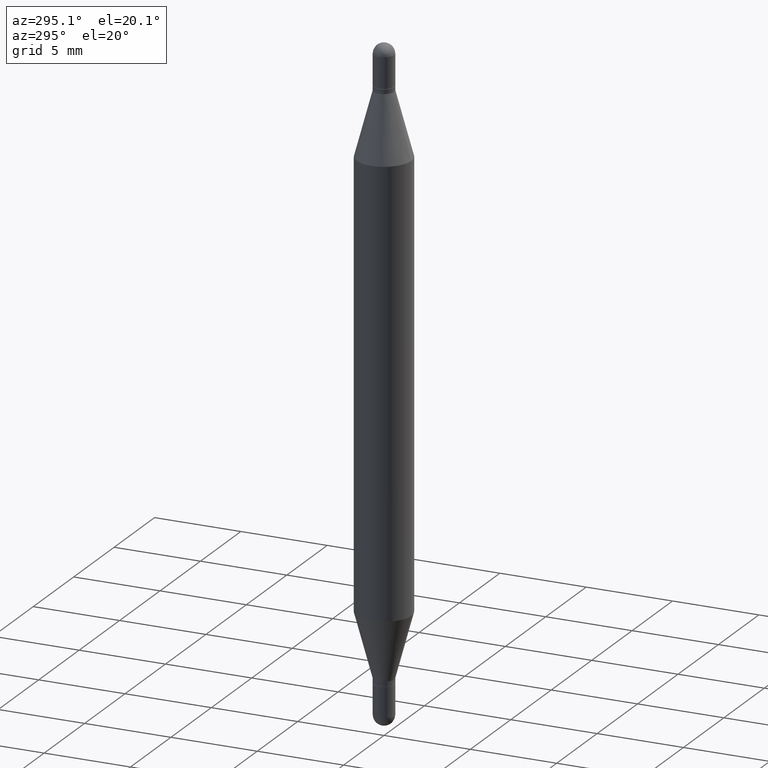
[diagram: clean part render]
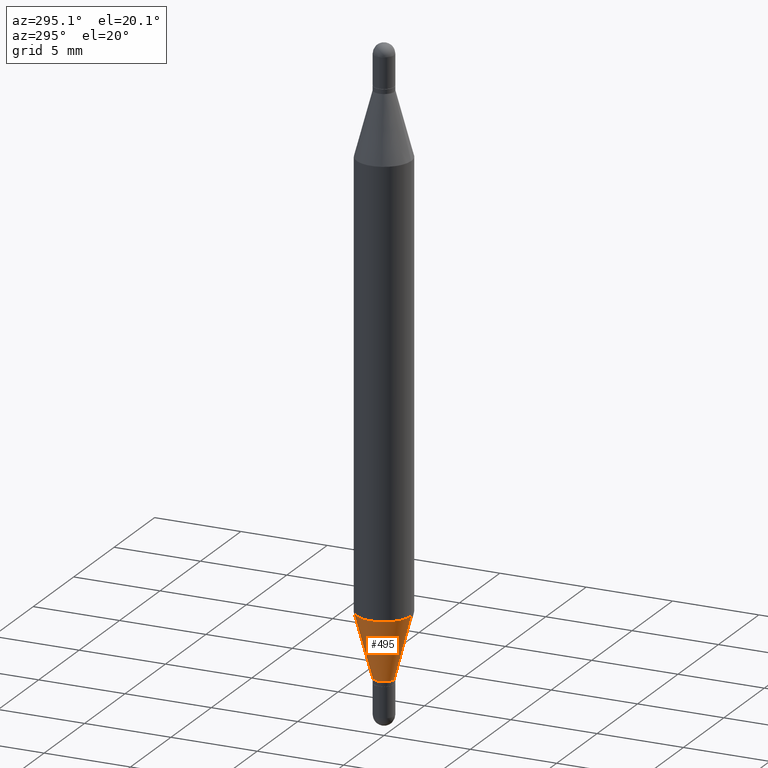
[diagram: same view with one face highlighted and labeled with its STEP entity id]
A machine part, auxiliary view. The second image highlights one B-rep face of the part: STEP entity #495.
In plain terms, the highlighted conical surface has half-angle 15 deg.
Its self-contained STEP definition (entity closure, byte-faithful):
#66 = DIRECTION ( 'NONE',  ( -2.445236134647148401E-29, 3.491814537728386085E-15, 1.000000000000000000 ) ) ;
#93 = VERTEX_POINT ( 'NONE', #431 ) ;
#105 = AXIS2_PLACEMENT_3D ( 'NONE', #230, #553, #468 ) ;
#153 = CARTESIAN_POINT ( 'NONE',  ( -1.637504747917082906E-16, -0.02345000000000479687, -1.396000000000000130 ) ) ;
#160 = DIRECTION ( 'NONE',  ( -6.982962677686266711E-15, -1.000000000000000000, 0.000000000000000000 ) ) ;
#207 = ORIENTED_EDGE ( 'NONE', *, *, #421, .T. ) ;
#215 = CIRCLE ( 'NONE', #357, 0.06250000000000000000 ) ;
#230 = CARTESIAN_POINT ( 'NONE',  ( 3.413549643967419566E-29, -4.874573094668826805E-15, -1.396000000000000130 ) ) ;
#276 = EDGE_CURVE ( 'NONE', #692, #879, #995, .T. ) ;
#351 = CARTESIAN_POINT ( 'NONE',  ( -1.637504747917082906E-16, -0.02345000000000479687, -1.396000000000000130 ) ) ;
#357 = AXIS2_PLACEMENT_3D ( 'NONE', #562, #485, #918 ) ;
#368 = CARTESIAN_POINT ( 'NONE',  ( 1.666222715357772816E-16, 0.02344999999999504772, -1.396000000000000130 ) ) ;
#372 = VECTOR ( 'NONE', #724, 39.37007874015748143 ) ;
#394 = CARTESIAN_POINT ( 'NONE',  ( 1.666222715357770350E-16, 0.02344999999999504772, -1.396000000000000130 ) ) ;
#403 = ORIENTED_EDGE ( 'NONE', *, *, #823, .T. ) ;
#415 = EDGE_CURVE ( 'NONE', #879, #93, #215, .T. ) ;
#421 = EDGE_CURVE ( 'NONE', #1046, #93, #1082, .T. ) ;
#431 = CARTESIAN_POINT ( 'NONE',  ( -4.364351673553610517E-16, -0.06250000000000435763, -1.250263415964435243 ) ) ;
#438 = CIRCLE ( 'NONE', #1014, 0.02344999999999992230 ) ;
#442 = VECTOR ( 'NONE', #638, 39.37007874015748143 ) ;
#468 = DIRECTION ( 'NONE',  ( -6.982962677686266711E-15, -1.000000000000000000, 0.000000000000000000 ) ) ;
#485 = DIRECTION ( 'NONE',  ( -2.445236134647148401E-29, 3.491814537728386085E-15, 1.000000000000000000 ) ) ;
#495 = ADVANCED_FACE ( 'NONE', ( #832 ), #718, .T. ) ;
#553 = DIRECTION ( 'NONE',  ( -2.445236134647148401E-29, 3.491814537728386085E-15, 1.000000000000000000 ) ) ;
#562 = CARTESIAN_POINT ( 'NONE',  ( 3.057189282543616555E-29, -4.365687971854568323E-15, -1.250263415964435687 ) ) ;
#638 = DIRECTION ( 'NONE',  ( -1.807323732225329745E-15, -0.2588190451025181305, 0.9659258262890689783 ) ) ;
#692 = VERTEX_POINT ( 'NONE', #368 ) ;
#718 = CONICAL_SURFACE ( 'NONE', #105, 0.02344999999999992230, 0.2617993877991502405 ) ;
#724 = DIRECTION ( 'NONE',  ( 1.839019923739599921E-15, 0.2588190451025249028, 0.9659258262890670910 ) ) ;
#823 = EDGE_CURVE ( 'NONE', #692, #1046, #438, .T. ) ;
#832 = FACE_OUTER_BOUND ( 'NONE', #1002, .T. ) ;
#844 = CARTESIAN_POINT ( 'NONE',  ( 3.413549643967419566E-29, -4.874573094668826805E-15, -1.396000000000000130 ) ) ;
#879 = VERTEX_POINT ( 'NONE', #1083 ) ;
#918 = DIRECTION ( 'NONE',  ( -6.982962677686265922E-15, -1.000000000000000000, 4.370956789862821150E-15 ) ) ;
#993 = ORIENTED_EDGE ( 'NONE', *, *, #415, .F. ) ;
#995 = LINE ( 'NONE', #394, #372 ) ;
#1002 = EDGE_LOOP ( 'NONE', ( #1100, #403, #207, #993 ) ) ;
#1014 = AXIS2_PLACEMENT_3D ( 'NONE', #844, #66, #160 ) ;
#1046 = VERTEX_POINT ( 'NONE', #351 ) ;
#1082 = LINE ( 'NONE', #153, #442 ) ;
#1083 = CARTESIAN_POINT ( 'NONE',  ( 4.287811248607390637E-16, 0.06249999999999563544, -1.250263415964435909 ) ) ;
#1100 = ORIENTED_EDGE ( 'NONE', *, *, #276, .F. ) ;